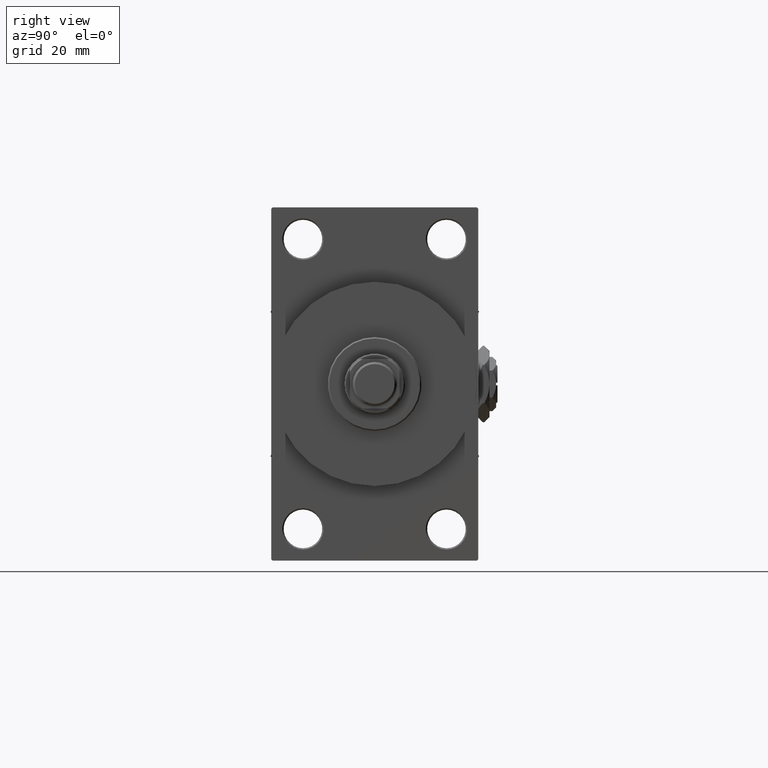
[diagram: clean part render]
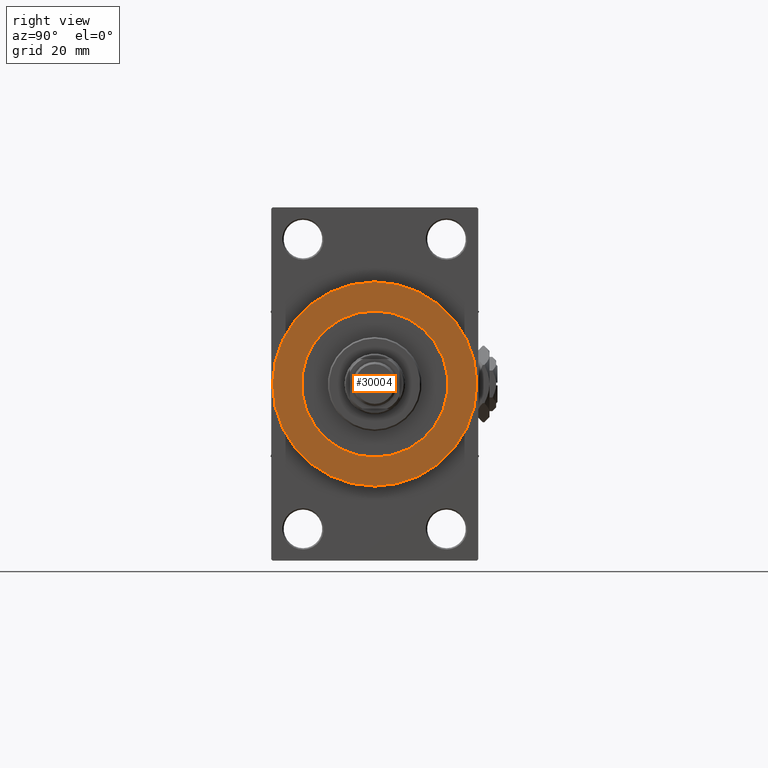
[diagram: same view with one face highlighted and labeled with its STEP entity id]
A machine part, right view. The second image highlights one B-rep face of the part: STEP entity #30004.
In plain terms, the highlighted planar face has unit normal (1, 0, 0).
Its self-contained STEP definition (entity closure, byte-faithful):
#65 = DIRECTION ( 'NONE',  ( 0.000000000000000000, 0.000000000000000000, -1.000000000000000000 ) ) ;
#1057 = PLANE ( 'NONE',  #37429 ) ;
#1344 = CARTESIAN_POINT ( 'NONE',  ( 154.0000000000000284, 3.245314017740486554E-15, 26.50000000000000355 ) ) ;
#2818 = CIRCLE ( 'NONE', #31704, 37.00000000000000000 ) ;
#2847 = DIRECTION ( 'NONE',  ( 0.000000000000000000, 0.000000000000000000, -1.000000000000000000 ) ) ;
#3248 = CIRCLE ( 'NONE', #10467, 37.00000000000000000 ) ;
#10200 = CARTESIAN_POINT ( 'NONE',  ( 154.0000000000000284, 0.000000000000000000, -26.50000000000000355 ) ) ;
#10467 = AXIS2_PLACEMENT_3D ( 'NONE', #20068, #35417, #16308 ) ;
#10608 = VERTEX_POINT ( 'NONE', #32641 ) ;
#11550 = ORIENTED_EDGE ( 'NONE', *, *, #40686, .T. ) ;
#12378 = FACE_BOUND ( 'NONE', #38769, .T. ) ;
#13522 = ORIENTED_EDGE ( 'NONE', *, *, #46081, .F. ) ;
#13926 = CARTESIAN_POINT ( 'NONE',  ( 154.0000000000000284, 0.000000000000000000, 0.000000000000000000 ) ) ;
#14177 = DIRECTION ( 'NONE',  ( 1.000000000000000000, 0.000000000000000000, 0.000000000000000000 ) ) ;
#16308 = DIRECTION ( 'NONE',  ( 0.000000000000000000, 0.000000000000000000, -1.000000000000000000 ) ) ;
#17766 = VERTEX_POINT ( 'NONE', #10200 ) ;
#19405 = CARTESIAN_POINT ( 'NONE',  ( 154.0000000000000284, 0.000000000000000000, 0.000000000000000000 ) ) ;
#20068 = CARTESIAN_POINT ( 'NONE',  ( 154.0000000000000284, 0.000000000000000000, 0.000000000000000000 ) ) ;
#23169 = DIRECTION ( 'NONE',  ( 1.000000000000000000, 0.000000000000000000, 0.000000000000000000 ) ) ;
#23193 = CARTESIAN_POINT ( 'NONE',  ( 154.0000000000000284, 0.000000000000000000, 0.000000000000000000 ) ) ;
#24692 = EDGE_LOOP ( 'NONE', ( #11550, #25909 ) ) ;
#25018 = EDGE_CURVE ( 'NONE', #10608, #43832, #2818, .T. ) ;
#25909 = ORIENTED_EDGE ( 'NONE', *, *, #25018, .T. ) ;
#30004 = ADVANCED_FACE ( 'NONE', ( #12378, #34516 ), #1057, .T. ) ;
#31637 = AXIS2_PLACEMENT_3D ( 'NONE', #13926, #14177, #2847 ) ;
#31704 = AXIS2_PLACEMENT_3D ( 'NONE', #19405, #37782, #37541 ) ;
#32093 = AXIS2_PLACEMENT_3D ( 'NONE', #42292, #23169, #46319 ) ;
#32641 = CARTESIAN_POINT ( 'NONE',  ( 154.0000000000000284, 4.531193156845206793E-15, -37.00000000000000000 ) ) ;
#34516 = FACE_OUTER_BOUND ( 'NONE', #24692, .T. ) ;
#35417 = DIRECTION ( 'NONE',  ( 1.000000000000000000, 0.000000000000000000, 0.000000000000000000 ) ) ;
#37429 = AXIS2_PLACEMENT_3D ( 'NONE', #23193, #39036, #65 ) ;
#37541 = DIRECTION ( 'NONE',  ( 0.000000000000000000, 0.000000000000000000, -1.000000000000000000 ) ) ;
#37782 = DIRECTION ( 'NONE',  ( 1.000000000000000000, 0.000000000000000000, 0.000000000000000000 ) ) ;
#38769 = EDGE_LOOP ( 'NONE', ( #47227, #13522 ) ) ;
#39036 = DIRECTION ( 'NONE',  ( 1.000000000000000000, 0.000000000000000000, 0.000000000000000000 ) ) ;
#39928 = VERTEX_POINT ( 'NONE', #1344 ) ;
#40228 = EDGE_CURVE ( 'NONE', #17766, #39928, #48205, .T. ) ;
#40686 = EDGE_CURVE ( 'NONE', #43832, #10608, #3248, .T. ) ;
#42292 = CARTESIAN_POINT ( 'NONE',  ( 154.0000000000000284, 0.000000000000000000, 0.000000000000000000 ) ) ;
#43832 = VERTEX_POINT ( 'NONE', #47371 ) ;
#46081 = EDGE_CURVE ( 'NONE', #39928, #17766, #47706, .T. ) ;
#46319 = DIRECTION ( 'NONE',  ( 0.000000000000000000, 0.000000000000000000, -1.000000000000000000 ) ) ;
#47227 = ORIENTED_EDGE ( 'NONE', *, *, #40228, .F. ) ;
#47371 = CARTESIAN_POINT ( 'NONE',  ( 154.0000000000000284, 0.000000000000000000, 37.00000000000000000 ) ) ;
#47706 = CIRCLE ( 'NONE', #31637, 26.50000000000000355 ) ;
#48205 = CIRCLE ( 'NONE', #32093, 26.50000000000000355 ) ;